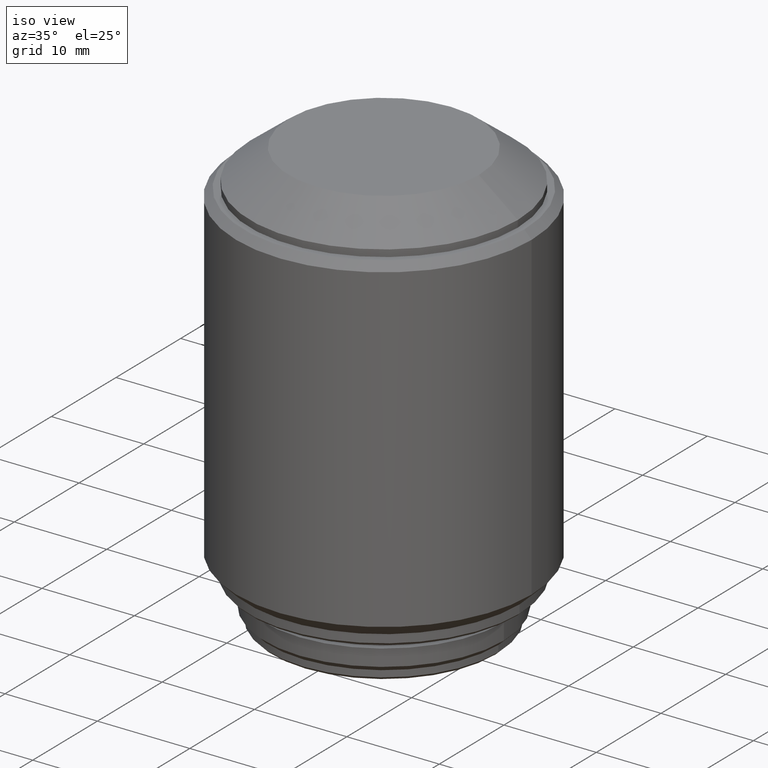
[diagram: clean part render]
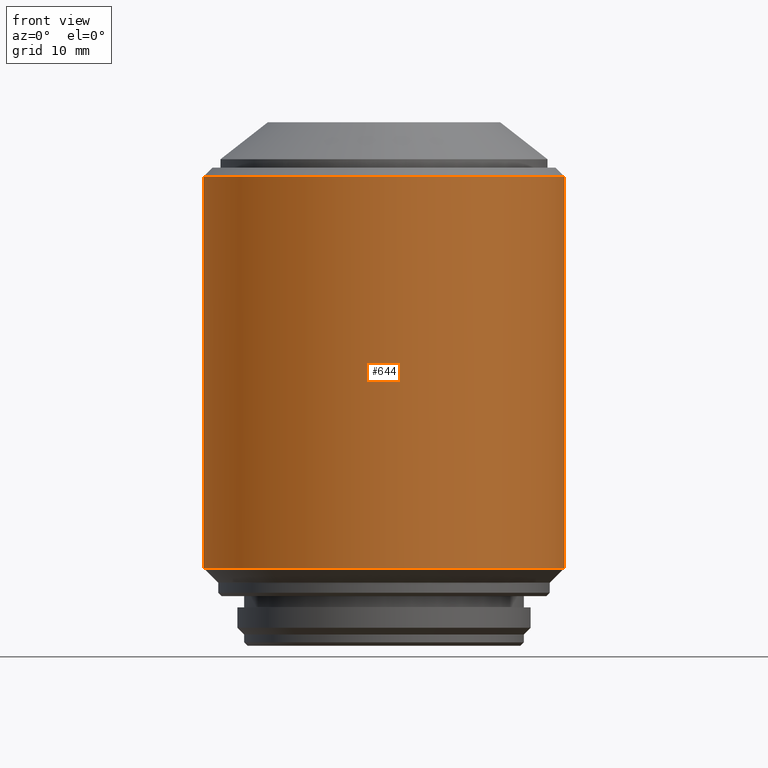
[diagram: tour spotlight — one face highlighted and labeled with its STEP entity id]
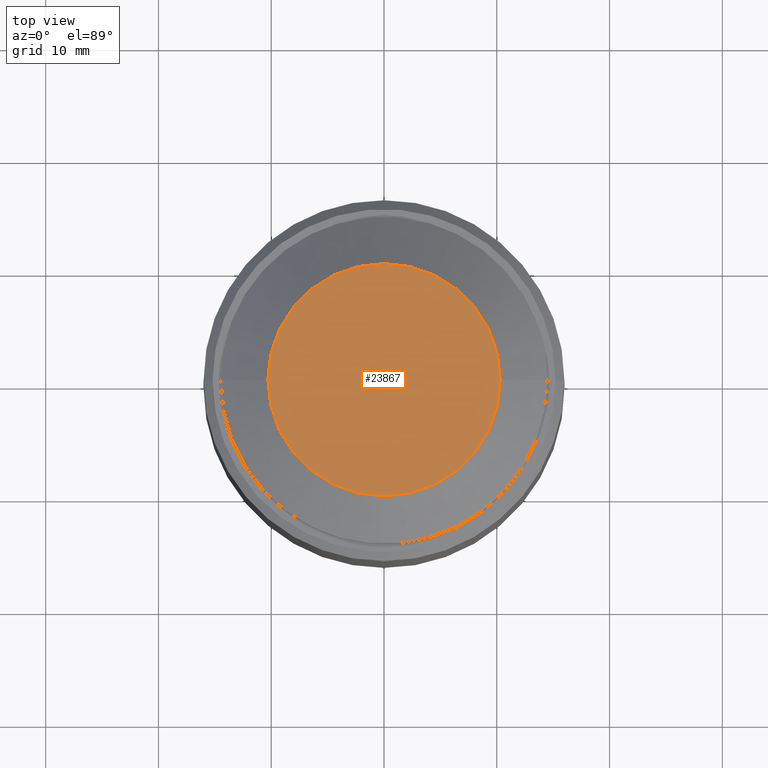
[diagram: tour spotlight — one face highlighted and labeled with its STEP entity id]
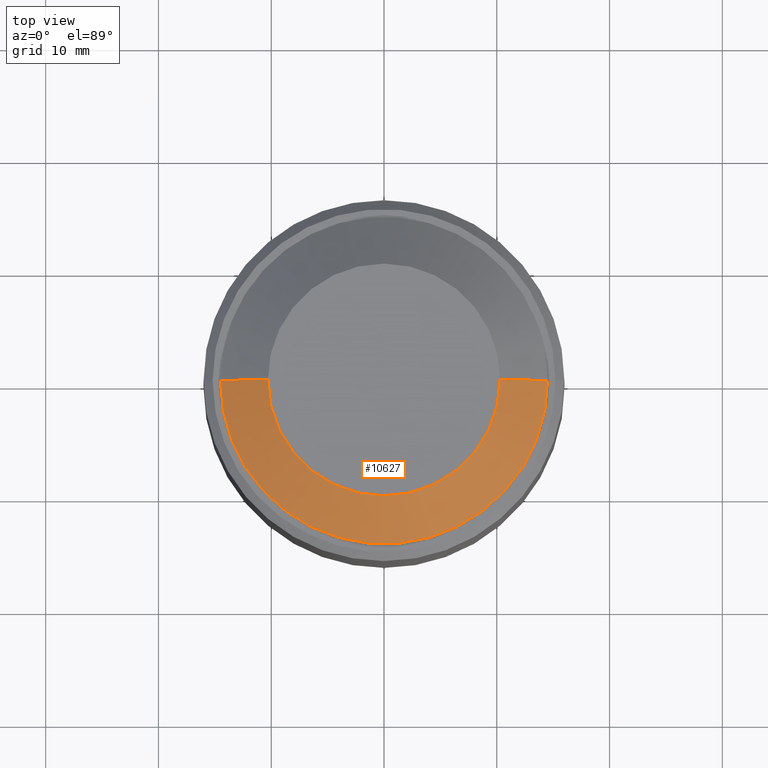
[diagram: tour spotlight — one face highlighted and labeled with its STEP entity id]
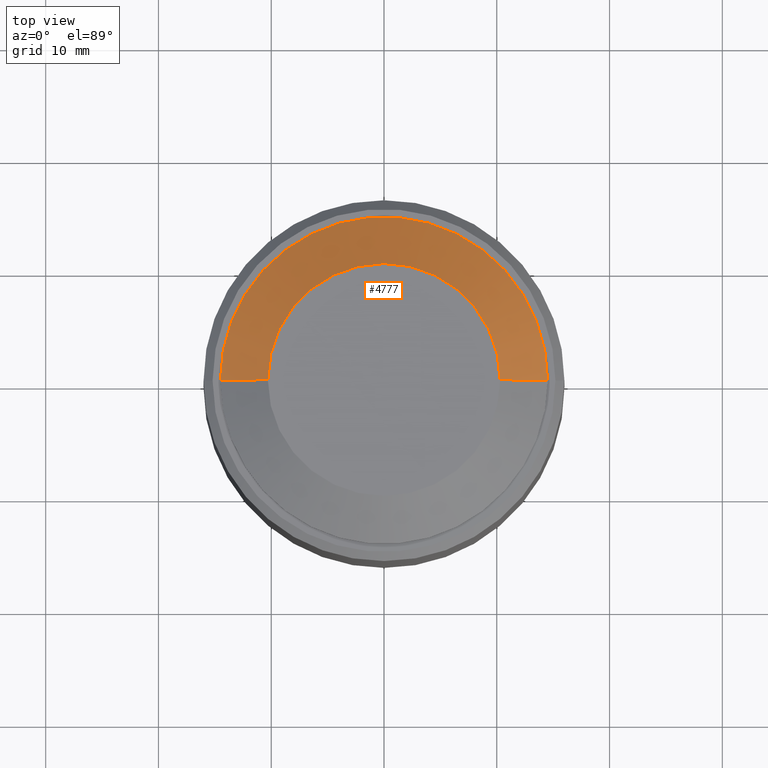
[diagram: tour spotlight — one face highlighted and labeled with its STEP entity id]
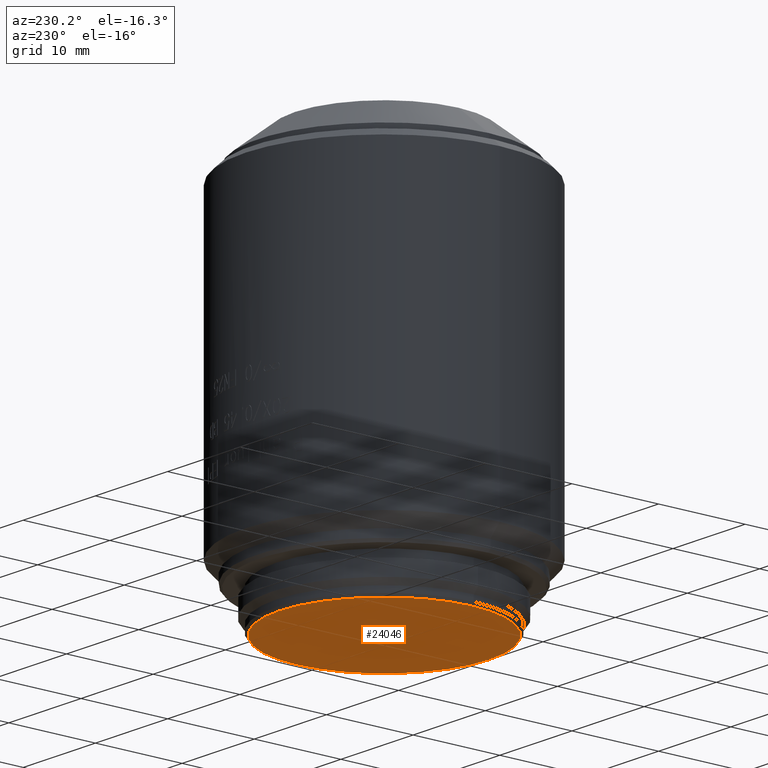
[diagram: tour spotlight — one face highlighted and labeled with its STEP entity id]
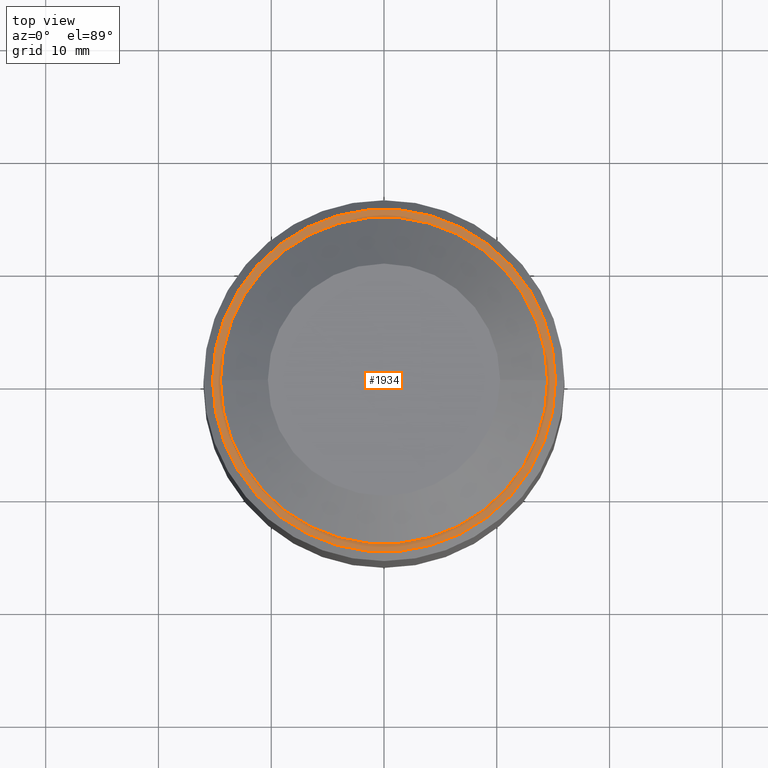
[diagram: tour spotlight — one face highlighted and labeled with its STEP entity id]
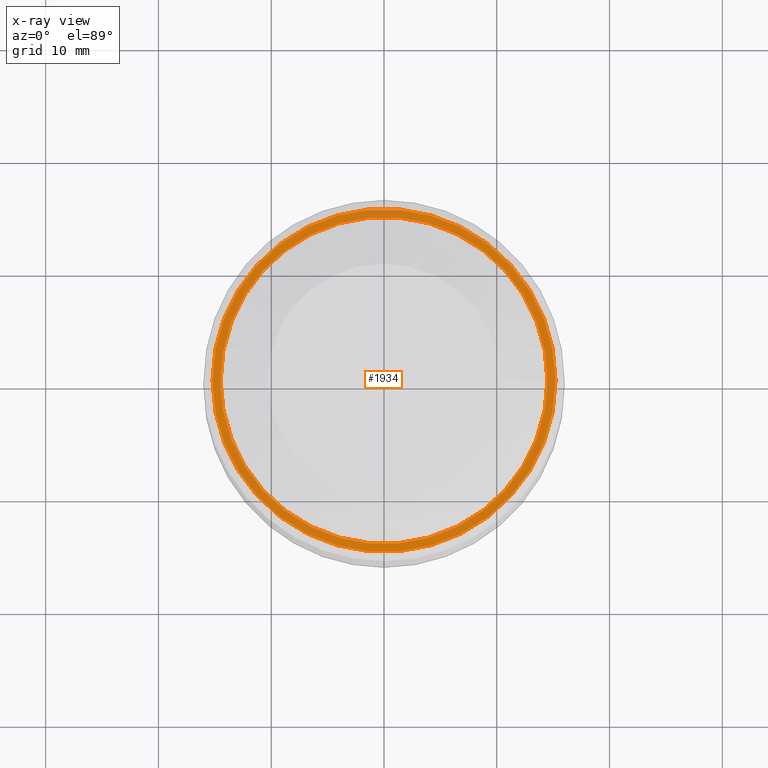
[diagram: x-ray of the same camera — body ghosted, this tour face saturated]
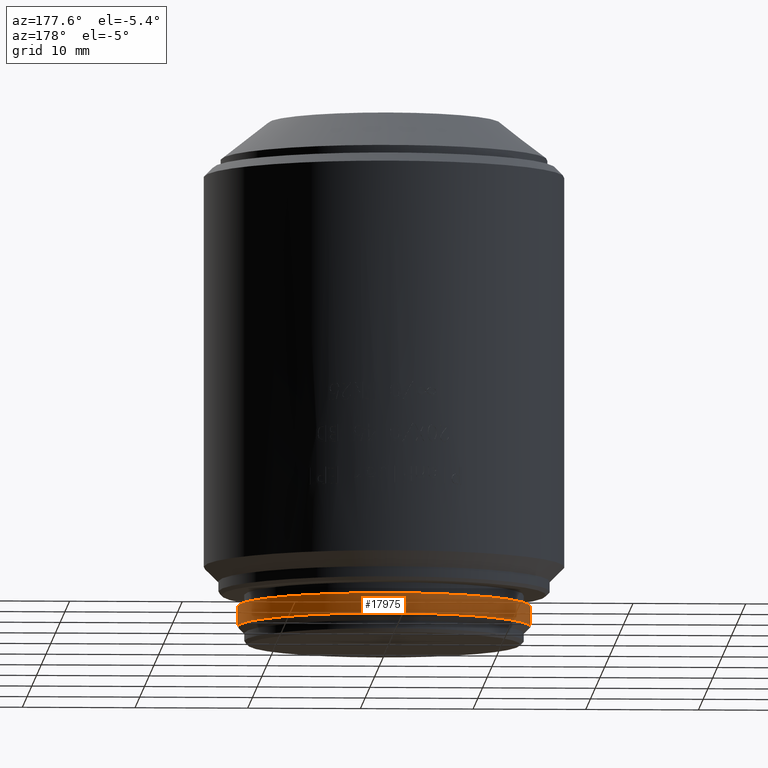
[diagram: tour spotlight — one face highlighted and labeled with its STEP entity id]
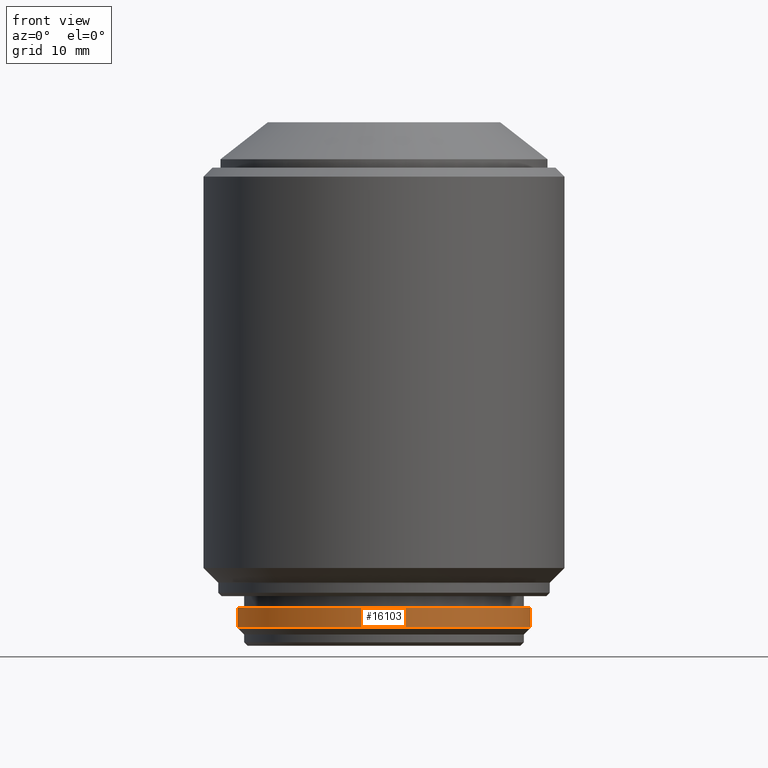
[diagram: tour spotlight — one face highlighted and labeled with its STEP entity id]
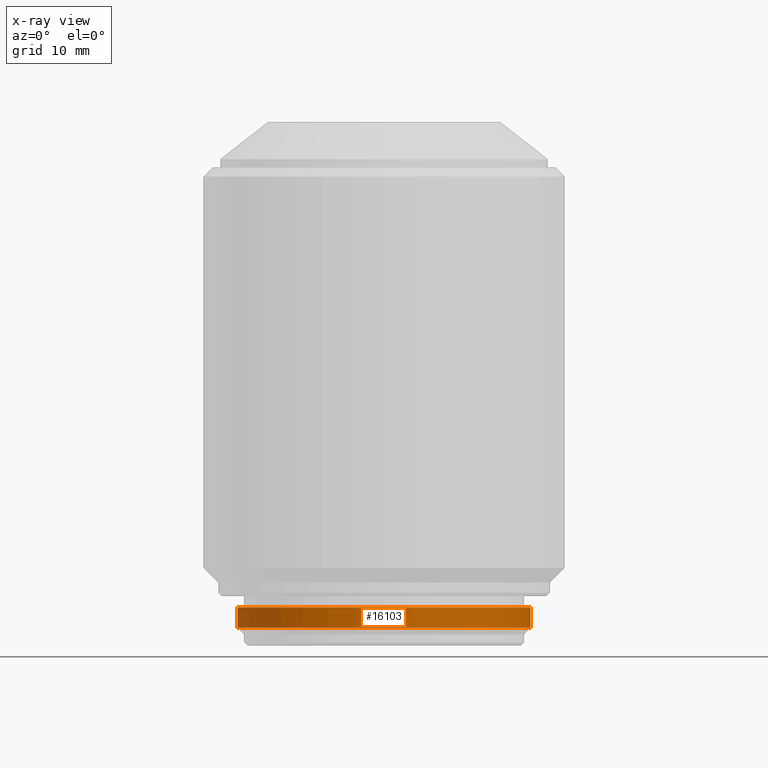
[diagram: x-ray of the same camera — body ghosted, this tour face saturated]
A machine part: a face-by-face anatomy tour. The part has 347 B-rep faces; the first image is the clean iso view, then the 8 largest visible faces are spotlighted one at a time (largest first), each with its STEP entity span.

Face 1 — front view, entity #644. In plain terms, the highlighted cylindrical surface (partial cylindrical patch) has radius 16 mm, axis along (0, 0, -1).
Definition (entity closure, byte-faithful):
#644 = ADVANCED_FACE ( 'NONE', ( #7503 ), #5560, .T. ) ;
#756 = DIRECTION ( 'NONE',  ( 0.000000000000000000, 0.000000000000000000, 1.000000000000000000 ) ) ;
#1432 = DIRECTION ( 'NONE',  ( 0.000000000000000000, 0.000000000000000000, -1.000000000000000000 ) ) ;
#2562 = CARTESIAN_POINT ( 'NONE',  ( -16.00000000000000355, 1.959434878635765526E-15, 6.899999999999999467 ) ) ;
#2698 = CARTESIAN_POINT ( 'NONE',  ( 0.000000000000000000, 0.000000000000000000, 6.899999999999999467 ) ) ;
#2952 = ORIENTED_EDGE ( 'NONE', *, *, #6996, .F. ) ;
#3122 = AXIS2_PLACEMENT_3D ( 'NONE', #2698, #756, #7221 ) ;
#3354 = CARTESIAN_POINT ( 'NONE',  ( 0.000000000000000000, 0.000000000000000000, 46.42300000000000182 ) ) ;
#4646 = EDGE_LOOP ( 'NONE', ( #2952, #12600, #4903, #21440 ) ) ;
#4903 = ORIENTED_EDGE ( 'NONE', *, *, #5698, .T. ) ;
#5560 = CYLINDRICAL_SURFACE ( 'NONE', #22860, 16.00000000000000000 ) ;
#5698 = EDGE_CURVE ( 'NONE', #23329, #9881, #20385, .T. ) ;
#6996 = EDGE_CURVE ( 'NONE', #23254, #23203, #12743, .T. ) ;
#7221 = DIRECTION ( 'NONE',  ( -1.000000000000000000, 0.000000000000000000, 0.000000000000000000 ) ) ;
#7503 = FACE_OUTER_BOUND ( 'NONE', #4646, .T. ) ;
#7744 = CARTESIAN_POINT ( 'NONE',  ( -16.00000000000000000, 0.000000000000000000, 41.60000000000000142 ) ) ;
#9881 = VERTEX_POINT ( 'NONE', #2562 ) ;
#10531 = CARTESIAN_POINT ( 'NONE',  ( -16.00000000000000000, 0.000000000000000000, 46.42300000000000182 ) ) ;
#11258 = DIRECTION ( 'NONE',  ( 0.000000000000000000, 0.000000000000000000, -1.000000000000000000 ) ) ;
#12600 = ORIENTED_EDGE ( 'NONE', *, *, #19697, .T. ) ;
#12743 = LINE ( 'NONE', #20652, #15422 ) ;
#13001 = DIRECTION ( 'NONE',  ( 0.000000000000000000, 0.000000000000000000, -1.000000000000000000 ) ) ;
#15422 = VECTOR ( 'NONE', #13001, 1000.000000000000000 ) ;
#15578 = AXIS2_PLACEMENT_3D ( 'NONE', #15696, #1432, #20221 ) ;
#15696 = CARTESIAN_POINT ( 'NONE',  ( 0.000000000000000000, 0.000000000000000000, 41.60000000000000142 ) ) ;
#15950 = CIRCLE ( 'NONE', #3122, 16.00000000000000000 ) ;
#18448 = DIRECTION ( 'NONE',  ( 0.000000000000000000, 0.000000000000000000, -1.000000000000000000 ) ) ;
#19169 = DIRECTION ( 'NONE',  ( -1.000000000000000000, 0.000000000000000000, 0.000000000000000000 ) ) ;
#19609 = VECTOR ( 'NONE', #18448, 1000.000000000000000 ) ;
#19697 = EDGE_CURVE ( 'NONE', #23254, #23329, #21773, .T. ) ;
#19790 = CARTESIAN_POINT ( 'NONE',  ( 16.00000000000000000, 1.959434878635765526E-15, 41.60000000000000142 ) ) ;
#20221 = DIRECTION ( 'NONE',  ( 1.000000000000000000, 0.000000000000000000, 0.000000000000000000 ) ) ;
#20385 = LINE ( 'NONE', #10531, #19609 ) ;
#20652 = CARTESIAN_POINT ( 'NONE',  ( 16.00000000000000000, 1.959434878635765131E-15, 46.42300000000000182 ) ) ;
#21440 = ORIENTED_EDGE ( 'NONE', *, *, #23693, .T. ) ;
#21773 = CIRCLE ( 'NONE', #15578, 16.00000000000000000 ) ;
#22860 = AXIS2_PLACEMENT_3D ( 'NONE', #3354, #11258, #19169 ) ;
#23203 = VERTEX_POINT ( 'NONE', #24967 ) ;
#23254 = VERTEX_POINT ( 'NONE', #19790 ) ;
#23329 = VERTEX_POINT ( 'NONE', #7744 ) ;
#23693 = EDGE_CURVE ( 'NONE', #9881, #23203, #15950, .T. ) ;
#24967 = CARTESIAN_POINT ( 'NONE',  ( 16.00000000000000355, 0.000000000000000000, 6.899999999999999467 ) ) ;

Face 2 — top view, entity #23867. In plain terms, the highlighted planar face has unit normal (0, 0, 1).
Definition (entity closure, byte-faithful):
#187 = CIRCLE ( 'NONE', #13835, 10.30000000000000071 ) ;
#220 = AXIS2_PLACEMENT_3D ( 'NONE', #25340, #23406, #5660 ) ;
#834 = VERTEX_POINT ( 'NONE', #10980 ) ;
#1337 = DIRECTION ( 'NONE',  ( 1.000000000000000000, 0.000000000000000000, 0.000000000000000000 ) ) ;
#1894 = EDGE_LOOP ( 'NONE', ( #21714, #19613 ) ) ;
#3396 = CARTESIAN_POINT ( 'NONE',  ( 0.000000000000000000, 0.000000000000000000, 46.42300000000000182 ) ) ;
#3811 = EDGE_CURVE ( 'NONE', #834, #24358, #187, .T. ) ;
#5660 = DIRECTION ( 'NONE',  ( 1.000000000000000000, 0.000000000000000000, 0.000000000000000000 ) ) ;
#6266 = AXIS2_PLACEMENT_3D ( 'NONE', #3396, #17267, #11300 ) ;
#7932 = CIRCLE ( 'NONE', #6266, 10.30000000000000071 ) ;
#9544 = PLANE ( 'NONE',  #220 ) ;
#10980 = CARTESIAN_POINT ( 'NONE',  ( 10.30000000000000071, 1.518562030942717967E-15, 46.42300000000000182 ) ) ;
#11300 = DIRECTION ( 'NONE',  ( 1.000000000000000000, 0.000000000000000000, 0.000000000000000000 ) ) ;
#13835 = AXIS2_PLACEMENT_3D ( 'NONE', #18853, #19097, #1337 ) ;
#16363 = EDGE_CURVE ( 'NONE', #24358, #834, #7932, .T. ) ;
#17267 = DIRECTION ( 'NONE',  ( 0.000000000000000000, 0.000000000000000000, 1.000000000000000000 ) ) ;
#17324 = FACE_OUTER_BOUND ( 'NONE', #1894, .T. ) ;
#18853 = CARTESIAN_POINT ( 'NONE',  ( 0.000000000000000000, 0.000000000000000000, 46.42300000000000182 ) ) ;
#19097 = DIRECTION ( 'NONE',  ( 0.000000000000000000, 0.000000000000000000, 1.000000000000000000 ) ) ;
#19613 = ORIENTED_EDGE ( 'NONE', *, *, #3811, .T. ) ;
#19844 = CARTESIAN_POINT ( 'NONE',  ( -10.30000000000000071, 0.000000000000000000, 46.42300000000000182 ) ) ;
#21714 = ORIENTED_EDGE ( 'NONE', *, *, #16363, .T. ) ;
#23406 = DIRECTION ( 'NONE',  ( 0.000000000000000000, 0.000000000000000000, 1.000000000000000000 ) ) ;
#23867 = ADVANCED_FACE ( 'NONE', ( #17324 ), #9544, .T. ) ;
#24358 = VERTEX_POINT ( 'NONE', #19844 ) ;
#25340 = CARTESIAN_POINT ( 'NONE',  ( 0.000000000000000000, 0.000000000000000000, 46.42300000000000182 ) ) ;

Face 3 — top view, entity #10627. In plain terms, the highlighted conical surface has half-angle 52.003 deg.
Definition (entity closure, byte-faithful):
#834 = VERTEX_POINT ( 'NONE', #10980 ) ;
#1117 = LINE ( 'NONE', #18627, #9197 ) ;
#1478 = LINE ( 'NONE', #24932, #21465 ) ;
#1572 = CARTESIAN_POINT ( 'NONE',  ( 0.000000000000000000, 0.000000000000000000, 43.14200000000000301 ) ) ;
#1694 = VERTEX_POINT ( 'NONE', #24799 ) ;
#1801 = FACE_OUTER_BOUND ( 'NONE', #16495, .T. ) ;
#3187 = EDGE_CURVE ( 'NONE', #834, #1694, #1478, .T. ) ;
#3396 = CARTESIAN_POINT ( 'NONE',  ( 0.000000000000000000, 0.000000000000000000, 46.42300000000000182 ) ) ;
#5715 = ORIENTED_EDGE ( 'NONE', *, *, #16363, .F. ) ;
#5936 = DIRECTION ( 'NONE',  ( -1.000000000000000000, 0.000000000000000000, 0.000000000000000000 ) ) ;
#6118 = EDGE_CURVE ( 'NONE', #1694, #7456, #19194, .T. ) ;
#6266 = AXIS2_PLACEMENT_3D ( 'NONE', #3396, #17267, #11300 ) ;
#7456 = VERTEX_POINT ( 'NONE', #8957 ) ;
#7637 = EDGE_CURVE ( 'NONE', #24358, #7456, #1117, .T. ) ;
#7932 = CIRCLE ( 'NONE', #6266, 10.30000000000000071 ) ;
#8197 = CONICAL_SURFACE ( 'NONE', #23919, 10.30000000000000071, 0.9076302983951283210 ) ;
#8957 = CARTESIAN_POINT ( 'NONE',  ( -14.49999999999999822, 0.000000000000000000, 43.14200000000000301 ) ) ;
#9197 = VECTOR ( 'NONE', #14607, 1000.000000000000000 ) ;
#10627 = ADVANCED_FACE ( 'NONE', ( #1801 ), #8197, .T. ) ;
#10980 = CARTESIAN_POINT ( 'NONE',  ( 10.30000000000000071, 1.518562030942717967E-15, 46.42300000000000182 ) ) ;
#11300 = DIRECTION ( 'NONE',  ( 1.000000000000000000, 0.000000000000000000, 0.000000000000000000 ) ) ;
#11677 = DIRECTION ( 'NONE',  ( 1.000000000000000000, 0.000000000000000000, 0.000000000000000000 ) ) ;
#12140 = AXIS2_PLACEMENT_3D ( 'NONE', #1572, #17388, #11677 ) ;
#13274 = DIRECTION ( 'NONE',  ( 0.7880471300411503455, 9.650793953821527505E-17, -0.6156149127773842267 ) ) ;
#13629 = ORIENTED_EDGE ( 'NONE', *, *, #6118, .F. ) ;
#14607 = DIRECTION ( 'NONE',  ( -0.7880471300411503455, 0.000000000000000000, -0.6156149127773842267 ) ) ;
#15795 = DIRECTION ( 'NONE',  ( 0.000000000000000000, 0.000000000000000000, -1.000000000000000000 ) ) ;
#16052 = CARTESIAN_POINT ( 'NONE',  ( 0.000000000000000000, 0.000000000000000000, 46.42300000000000182 ) ) ;
#16363 = EDGE_CURVE ( 'NONE', #24358, #834, #7932, .T. ) ;
#16495 = EDGE_LOOP ( 'NONE', ( #22158, #5715, #17248, #13629 ) ) ;
#17248 = ORIENTED_EDGE ( 'NONE', *, *, #7637, .T. ) ;
#17267 = DIRECTION ( 'NONE',  ( 0.000000000000000000, 0.000000000000000000, 1.000000000000000000 ) ) ;
#17388 = DIRECTION ( 'NONE',  ( 0.000000000000000000, 0.000000000000000000, -1.000000000000000000 ) ) ;
#18627 = CARTESIAN_POINT ( 'NONE',  ( -10.30000000000000071, 0.000000000000000000, 46.42300000000000182 ) ) ;
#19194 = CIRCLE ( 'NONE', #12140, 14.50000000000000000 ) ;
#19844 = CARTESIAN_POINT ( 'NONE',  ( -10.30000000000000071, 0.000000000000000000, 46.42300000000000182 ) ) ;
#21465 = VECTOR ( 'NONE', #13274, 1000.000000000000000 ) ;
#22158 = ORIENTED_EDGE ( 'NONE', *, *, #3187, .F. ) ;
#23919 = AXIS2_PLACEMENT_3D ( 'NONE', #16052, #15795, #5936 ) ;
#24358 = VERTEX_POINT ( 'NONE', #19844 ) ;
#24799 = CARTESIAN_POINT ( 'NONE',  ( 14.49999999999999822, 1.775737858763662015E-15, 43.14200000000000301 ) ) ;
#24932 = CARTESIAN_POINT ( 'NONE',  ( 10.30000000000000071, 1.261386203121773722E-15, 46.42300000000000182 ) ) ;

Face 4 — top view, entity #4777. In plain terms, the highlighted conical surface has half-angle 52.003 deg.
Definition (entity closure, byte-faithful):
#187 = CIRCLE ( 'NONE', #13835, 10.30000000000000071 ) ;
#683 = ORIENTED_EDGE ( 'NONE', *, *, #7637, .F. ) ;
#834 = VERTEX_POINT ( 'NONE', #10980 ) ;
#853 = EDGE_CURVE ( 'NONE', #7456, #1694, #12540, .T. ) ;
#1117 = LINE ( 'NONE', #18627, #9197 ) ;
#1320 = CONICAL_SURFACE ( 'NONE', #12084, 10.30000000000000071, 0.9076302983951283210 ) ;
#1337 = DIRECTION ( 'NONE',  ( 1.000000000000000000, 0.000000000000000000, 0.000000000000000000 ) ) ;
#1478 = LINE ( 'NONE', #24932, #21465 ) ;
#1694 = VERTEX_POINT ( 'NONE', #24799 ) ;
#3187 = EDGE_CURVE ( 'NONE', #834, #1694, #1478, .T. ) ;
#3199 = ORIENTED_EDGE ( 'NONE', *, *, #3811, .F. ) ;
#3811 = EDGE_CURVE ( 'NONE', #834, #24358, #187, .T. ) ;
#4777 = ADVANCED_FACE ( 'NONE', ( #11608 ), #1320, .T. ) ;
#7426 = EDGE_LOOP ( 'NONE', ( #3199, #19588, #8541, #683 ) ) ;
#7456 = VERTEX_POINT ( 'NONE', #8957 ) ;
#7637 = EDGE_CURVE ( 'NONE', #24358, #7456, #1117, .T. ) ;
#7728 = DIRECTION ( 'NONE',  ( -1.000000000000000000, 0.000000000000000000, 0.000000000000000000 ) ) ;
#8541 = ORIENTED_EDGE ( 'NONE', *, *, #853, .F. ) ;
#8957 = CARTESIAN_POINT ( 'NONE',  ( -14.49999999999999822, 0.000000000000000000, 43.14200000000000301 ) ) ;
#9197 = VECTOR ( 'NONE', #14607, 1000.000000000000000 ) ;
#10980 = CARTESIAN_POINT ( 'NONE',  ( 10.30000000000000071, 1.518562030942717967E-15, 46.42300000000000182 ) ) ;
#11482 = CARTESIAN_POINT ( 'NONE',  ( 0.000000000000000000, 0.000000000000000000, 43.14200000000000301 ) ) ;
#11608 = FACE_OUTER_BOUND ( 'NONE', #7426, .T. ) ;
#11694 = AXIS2_PLACEMENT_3D ( 'NONE', #11482, #18893, #19400 ) ;
#12084 = AXIS2_PLACEMENT_3D ( 'NONE', #23399, #19652, #7728 ) ;
#12540 = CIRCLE ( 'NONE', #11694, 14.50000000000000000 ) ;
#13274 = DIRECTION ( 'NONE',  ( 0.7880471300411503455, 9.650793953821527505E-17, -0.6156149127773842267 ) ) ;
#13835 = AXIS2_PLACEMENT_3D ( 'NONE', #18853, #19097, #1337 ) ;
#14607 = DIRECTION ( 'NONE',  ( -0.7880471300411503455, 0.000000000000000000, -0.6156149127773842267 ) ) ;
#18627 = CARTESIAN_POINT ( 'NONE',  ( -10.30000000000000071, 0.000000000000000000, 46.42300000000000182 ) ) ;
#18853 = CARTESIAN_POINT ( 'NONE',  ( 0.000000000000000000, 0.000000000000000000, 46.42300000000000182 ) ) ;
#18893 = DIRECTION ( 'NONE',  ( 0.000000000000000000, 0.000000000000000000, -1.000000000000000000 ) ) ;
#19097 = DIRECTION ( 'NONE',  ( 0.000000000000000000, 0.000000000000000000, 1.000000000000000000 ) ) ;
#19400 = DIRECTION ( 'NONE',  ( 1.000000000000000000, 0.000000000000000000, 0.000000000000000000 ) ) ;
#19588 = ORIENTED_EDGE ( 'NONE', *, *, #3187, .T. ) ;
#19652 = DIRECTION ( 'NONE',  ( 0.000000000000000000, 0.000000000000000000, -1.000000000000000000 ) ) ;
#19844 = CARTESIAN_POINT ( 'NONE',  ( -10.30000000000000071, 0.000000000000000000, 46.42300000000000182 ) ) ;
#21465 = VECTOR ( 'NONE', #13274, 1000.000000000000000 ) ;
#23399 = CARTESIAN_POINT ( 'NONE',  ( 0.000000000000000000, 0.000000000000000000, 46.42300000000000182 ) ) ;
#24358 = VERTEX_POINT ( 'NONE', #19844 ) ;
#24799 = CARTESIAN_POINT ( 'NONE',  ( 14.49999999999999822, 1.775737858763662015E-15, 43.14200000000000301 ) ) ;
#24932 = CARTESIAN_POINT ( 'NONE',  ( 10.30000000000000071, 1.261386203121773722E-15, 46.42300000000000182 ) ) ;

Face 5 — auxiliary view, entity #24046. In plain terms, the highlighted planar face has unit normal (0, 0, 1).
Definition (entity closure, byte-faithful):
#339 = DIRECTION ( 'NONE',  ( 0.000000000000000000, 0.000000000000000000, 1.000000000000000000 ) ) ;
#1242 = CARTESIAN_POINT ( 'NONE',  ( 12.09999999999999964, 0.000000000000000000, 0.000000000000000000 ) ) ;
#2843 = AXIS2_PLACEMENT_3D ( 'NONE', #13357, #13110, #3255 ) ;
#2849 = AXIS2_PLACEMENT_3D ( 'NONE', #23377, #19632, #13790 ) ;
#3255 = DIRECTION ( 'NONE',  ( 1.000000000000000000, 0.000000000000000000, 0.000000000000000000 ) ) ;
#3429 = EDGE_CURVE ( 'NONE', #19144, #9471, #25171, .T. ) ;
#4886 = ORIENTED_EDGE ( 'NONE', *, *, #3429, .T. ) ;
#6149 = CIRCLE ( 'NONE', #2843, 12.09999999999999964 ) ;
#6299 = DIRECTION ( 'NONE',  ( 1.000000000000000000, 0.000000000000000000, 0.000000000000000000 ) ) ;
#6724 = EDGE_LOOP ( 'NONE', ( #15570, #4886 ) ) ;
#7736 = PLANE ( 'NONE',  #15140 ) ;
#7984 = FACE_OUTER_BOUND ( 'NONE', #6724, .T. ) ;
#9471 = VERTEX_POINT ( 'NONE', #1242 ) ;
#10298 = EDGE_CURVE ( 'NONE', #9471, #19144, #6149, .T. ) ;
#13110 = DIRECTION ( 'NONE',  ( 0.000000000000000000, 0.000000000000000000, -1.000000000000000000 ) ) ;
#13357 = CARTESIAN_POINT ( 'NONE',  ( 0.000000000000000000, 0.000000000000000000, 0.000000000000000000 ) ) ;
#13790 = DIRECTION ( 'NONE',  ( 1.000000000000000000, 0.000000000000000000, 0.000000000000000000 ) ) ;
#15140 = AXIS2_PLACEMENT_3D ( 'NONE', #24036, #339, #6299 ) ;
#15570 = ORIENTED_EDGE ( 'NONE', *, *, #10298, .T. ) ;
#15888 = CARTESIAN_POINT ( 'NONE',  ( -12.09999999999999964, 1.500192328955508523E-15, 0.000000000000000000 ) ) ;
#19144 = VERTEX_POINT ( 'NONE', #15888 ) ;
#19632 = DIRECTION ( 'NONE',  ( 0.000000000000000000, 0.000000000000000000, -1.000000000000000000 ) ) ;
#23377 = CARTESIAN_POINT ( 'NONE',  ( 0.000000000000000000, 0.000000000000000000, 0.000000000000000000 ) ) ;
#24036 = CARTESIAN_POINT ( 'NONE',  ( 0.000000000000000000, 0.000000000000000000, 0.000000000000000000 ) ) ;
#24046 = ADVANCED_FACE ( 'NONE', ( #7984 ), #7736, .F. ) ;
#25171 = CIRCLE ( 'NONE', #2849, 12.09999999999999964 ) ;

Face 6 — top view, entity #1934. An x-ray twin of the same camera follows (body ghosted, this face saturated) — the face is partly hidden behind the body. In plain terms, the highlighted planar face has unit normal (0, 0, 1).
Definition (entity closure, byte-faithful):
#131 = ORIENTED_EDGE ( 'NONE', *, *, #1206, .F. ) ;
#168 = EDGE_CURVE ( 'NONE', #23279, #8726, #8263, .T. ) ;
#362 = AXIS2_PLACEMENT_3D ( 'NONE', #12285, #20192, #2439 ) ;
#1206 = EDGE_CURVE ( 'NONE', #7737, #15767, #19158, .T. ) ;
#1934 = ADVANCED_FACE ( 'NONE', ( #15603, #23495 ), #21419, .T. ) ;
#2439 = DIRECTION ( 'NONE',  ( 1.000000000000000000, 0.000000000000000000, 0.000000000000000000 ) ) ;
#4547 = DIRECTION ( 'NONE',  ( 1.000000000000000000, 0.000000000000000000, 0.000000000000000000 ) ) ;
#4868 = DIRECTION ( 'NONE',  ( 0.000000000000000000, 0.000000000000000000, 1.000000000000000000 ) ) ;
#5913 = AXIS2_PLACEMENT_3D ( 'NONE', #20291, #4868, #12768 ) ;
#7482 = CARTESIAN_POINT ( 'NONE',  ( -15.19999999999999929, 0.000000000000000000, 42.39999999999999858 ) ) ;
#7630 = CARTESIAN_POINT ( 'NONE',  ( 0.000000000000000000, 0.000000000000000000, 42.39999999999999858 ) ) ;
#7737 = VERTEX_POINT ( 'NONE', #10037 ) ;
#8263 = CIRCLE ( 'NONE', #12817, 15.19999999999999929 ) ;
#8726 = VERTEX_POINT ( 'NONE', #12846 ) ;
#9296 = CIRCLE ( 'NONE', #22550, 14.50000000000000000 ) ;
#9761 = DIRECTION ( 'NONE',  ( 0.000000000000000000, 0.000000000000000000, 1.000000000000000000 ) ) ;
#10037 = CARTESIAN_POINT ( 'NONE',  ( -14.50000000000000000, 1.775737858763662015E-15, 42.39999999999999858 ) ) ;
#10403 = ORIENTED_EDGE ( 'NONE', *, *, #12668, .T. ) ;
#11576 = CARTESIAN_POINT ( 'NONE',  ( 0.000000000000000000, 0.000000000000000000, 42.39999999999999858 ) ) ;
#12285 = CARTESIAN_POINT ( 'NONE',  ( 0.000000000000000000, 0.000000000000000000, 42.39999999999999858 ) ) ;
#12549 = EDGE_LOOP ( 'NONE', ( #13839, #10403 ) ) ;
#12668 = EDGE_CURVE ( 'NONE', #8726, #23279, #25592, .T. ) ;
#12709 = CARTESIAN_POINT ( 'NONE',  ( 0.000000000000000000, 0.000000000000000000, 42.39999999999999858 ) ) ;
#12768 = DIRECTION ( 'NONE',  ( 1.000000000000000000, 0.000000000000000000, 0.000000000000000000 ) ) ;
#12817 = AXIS2_PLACEMENT_3D ( 'NONE', #7630, #15542, #20319 ) ;
#12846 = CARTESIAN_POINT ( 'NONE',  ( 15.19999999999999929, 1.910449006669870914E-15, 42.39999999999999858 ) ) ;
#13839 = ORIENTED_EDGE ( 'NONE', *, *, #168, .T. ) ;
#15542 = DIRECTION ( 'NONE',  ( 0.000000000000000000, 0.000000000000000000, 1.000000000000000000 ) ) ;
#15603 = FACE_BOUND ( 'NONE', #21961, .T. ) ;
#15767 = VERTEX_POINT ( 'NONE', #21527 ) ;
#17968 = ORIENTED_EDGE ( 'NONE', *, *, #22564, .F. ) ;
#19158 = CIRCLE ( 'NONE', #5913, 14.50000000000000000 ) ;
#20192 = DIRECTION ( 'NONE',  ( 0.000000000000000000, 0.000000000000000000, 1.000000000000000000 ) ) ;
#20291 = CARTESIAN_POINT ( 'NONE',  ( 0.000000000000000000, 0.000000000000000000, 42.39999999999999858 ) ) ;
#20319 = DIRECTION ( 'NONE',  ( 1.000000000000000000, 0.000000000000000000, 0.000000000000000000 ) ) ;
#21419 = PLANE ( 'NONE',  #23791 ) ;
#21527 = CARTESIAN_POINT ( 'NONE',  ( 14.50000000000000000, 0.000000000000000000, 42.39999999999999858 ) ) ;
#21961 = EDGE_LOOP ( 'NONE', ( #17968, #131 ) ) ;
#22550 = AXIS2_PLACEMENT_3D ( 'NONE', #12709, #24614, #4547 ) ;
#22564 = EDGE_CURVE ( 'NONE', #15767, #7737, #9296, .T. ) ;
#23279 = VERTEX_POINT ( 'NONE', #7482 ) ;
#23495 = FACE_OUTER_BOUND ( 'NONE', #12549, .T. ) ;
#23791 = AXIS2_PLACEMENT_3D ( 'NONE', #11576, #9761, #24522 ) ;
#24522 = DIRECTION ( 'NONE',  ( 1.000000000000000000, 0.000000000000000000, 0.000000000000000000 ) ) ;
#24614 = DIRECTION ( 'NONE',  ( 0.000000000000000000, 0.000000000000000000, 1.000000000000000000 ) ) ;
#25592 = CIRCLE ( 'NONE', #362, 15.19999999999999929 ) ;

Face 7 — auxiliary view, entity #17975. In plain terms, the highlighted cylindrical surface (partial cylindrical patch) has radius 13 mm, axis along (0, 0, -1).
Definition (entity closure, byte-faithful):
#640 = CARTESIAN_POINT ( 'NONE',  ( -13.00000000000000000, 0.000000000000000000, 3.399999999999999911 ) ) ;
#2380 = ORIENTED_EDGE ( 'NONE', *, *, #3356, .T. ) ;
#2755 = EDGE_LOOP ( 'NONE', ( #23590, #4057, #2380, #15632 ) ) ;
#2802 = DIRECTION ( 'NONE',  ( 0.000000000000000000, 0.000000000000000000, -1.000000000000000000 ) ) ;
#3356 = EDGE_CURVE ( 'NONE', #7123, #12772, #14861, .T. ) ;
#3691 = DIRECTION ( 'NONE',  ( -1.000000000000000000, 0.000000000000000000, 0.000000000000000000 ) ) ;
#3852 = DIRECTION ( 'NONE',  ( 0.000000000000000000, 0.000000000000000000, -1.000000000000000000 ) ) ;
#4057 = ORIENTED_EDGE ( 'NONE', *, *, #21897, .T. ) ;
#4193 = CARTESIAN_POINT ( 'NONE',  ( 0.000000000000000000, 0.000000000000000000, 1.600000000000000089 ) ) ;
#5643 = DIRECTION ( 'NONE',  ( -1.000000000000000000, 0.000000000000000000, 0.000000000000000000 ) ) ;
#5794 = CARTESIAN_POINT ( 'NONE',  ( -13.00000000000000000, 0.000000000000000000, 4.400000000000000355 ) ) ;
#7123 = VERTEX_POINT ( 'NONE', #10387 ) ;
#8276 = LINE ( 'NONE', #14107, #13442 ) ;
#9183 = AXIS2_PLACEMENT_3D ( 'NONE', #15626, #13677, #5643 ) ;
#10387 = CARTESIAN_POINT ( 'NONE',  ( 13.00000000000000000, 0.000000000000000000, 1.600000000000000089 ) ) ;
#11417 = CARTESIAN_POINT ( 'NONE',  ( -13.00000000000000000, 1.592040838891559095E-15, 1.600000000000000089 ) ) ;
#11724 = CYLINDRICAL_SURFACE ( 'NONE', #9183, 13.00000000000000000 ) ;
#12772 = VERTEX_POINT ( 'NONE', #11417 ) ;
#13442 = VECTOR ( 'NONE', #2802, 1000.000000000000000 ) ;
#13535 = DIRECTION ( 'NONE',  ( 0.000000000000000000, 0.000000000000000000, 1.000000000000000000 ) ) ;
#13540 = DIRECTION ( 'NONE',  ( 0.000000000000000000, 0.000000000000000000, 1.000000000000000000 ) ) ;
#13677 = DIRECTION ( 'NONE',  ( 0.000000000000000000, 0.000000000000000000, -1.000000000000000000 ) ) ;
#13891 = VECTOR ( 'NONE', #3852, 1000.000000000000000 ) ;
#14107 = CARTESIAN_POINT ( 'NONE',  ( 13.00000000000000000, 1.592040838891559095E-15, 4.400000000000000355 ) ) ;
#14229 = EDGE_CURVE ( 'NONE', #22261, #14739, #19254, .T. ) ;
#14739 = VERTEX_POINT ( 'NONE', #640 ) ;
#14861 = CIRCLE ( 'NONE', #18164, 13.00000000000000000 ) ;
#15626 = CARTESIAN_POINT ( 'NONE',  ( 0.000000000000000000, 0.000000000000000000, 4.400000000000000355 ) ) ;
#15632 = ORIENTED_EDGE ( 'NONE', *, *, #24994, .F. ) ;
#17051 = CARTESIAN_POINT ( 'NONE',  ( 0.000000000000000000, 0.000000000000000000, 3.399999999999999911 ) ) ;
#17975 = ADVANCED_FACE ( 'NONE', ( #21826 ), #11724, .T. ) ;
#18164 = AXIS2_PLACEMENT_3D ( 'NONE', #4193, #13535, #20007 ) ;
#18823 = AXIS2_PLACEMENT_3D ( 'NONE', #17051, #13540, #3691 ) ;
#19254 = CIRCLE ( 'NONE', #18823, 13.00000000000000000 ) ;
#19546 = LINE ( 'NONE', #5794, #13891 ) ;
#19630 = CARTESIAN_POINT ( 'NONE',  ( 13.00000000000000000, 1.592040838891559095E-15, 3.399999999999999911 ) ) ;
#20007 = DIRECTION ( 'NONE',  ( -1.000000000000000000, 0.000000000000000000, 0.000000000000000000 ) ) ;
#21826 = FACE_OUTER_BOUND ( 'NONE', #2755, .T. ) ;
#21897 = EDGE_CURVE ( 'NONE', #22261, #7123, #8276, .T. ) ;
#22261 = VERTEX_POINT ( 'NONE', #19630 ) ;
#23590 = ORIENTED_EDGE ( 'NONE', *, *, #14229, .F. ) ;
#24994 = EDGE_CURVE ( 'NONE', #14739, #12772, #19546, .T. ) ;

Face 8 — front view, entity #16103. An x-ray twin of the same camera follows (body ghosted, this face saturated) — the face is partly hidden behind the body. In plain terms, the highlighted cylindrical surface (partial cylindrical patch) has radius 13 mm, axis along (0, 0, -1).
Definition (entity closure, byte-faithful):
#640 = CARTESIAN_POINT ( 'NONE',  ( -13.00000000000000000, 0.000000000000000000, 3.399999999999999911 ) ) ;
#953 = DIRECTION ( 'NONE',  ( 0.000000000000000000, 0.000000000000000000, -1.000000000000000000 ) ) ;
#1220 = EDGE_LOOP ( 'NONE', ( #21898, #24554, #3132, #11859 ) ) ;
#2802 = DIRECTION ( 'NONE',  ( 0.000000000000000000, 0.000000000000000000, -1.000000000000000000 ) ) ;
#3052 = DIRECTION ( 'NONE',  ( -1.000000000000000000, 0.000000000000000000, 0.000000000000000000 ) ) ;
#3132 = ORIENTED_EDGE ( 'NONE', *, *, #24994, .T. ) ;
#3852 = DIRECTION ( 'NONE',  ( 0.000000000000000000, 0.000000000000000000, -1.000000000000000000 ) ) ;
#4627 = AXIS2_PLACEMENT_3D ( 'NONE', #4845, #953, #8984 ) ;
#4845 = CARTESIAN_POINT ( 'NONE',  ( 0.000000000000000000, 0.000000000000000000, 4.400000000000000355 ) ) ;
#5794 = CARTESIAN_POINT ( 'NONE',  ( -13.00000000000000000, 0.000000000000000000, 4.400000000000000355 ) ) ;
#7123 = VERTEX_POINT ( 'NONE', #10387 ) ;
#8276 = LINE ( 'NONE', #14107, #13442 ) ;
#8984 = DIRECTION ( 'NONE',  ( -1.000000000000000000, 0.000000000000000000, 0.000000000000000000 ) ) ;
#10130 = CIRCLE ( 'NONE', #20488, 13.00000000000000000 ) ;
#10387 = CARTESIAN_POINT ( 'NONE',  ( 13.00000000000000000, 0.000000000000000000, 1.600000000000000089 ) ) ;
#11173 = FACE_OUTER_BOUND ( 'NONE', #1220, .T. ) ;
#11417 = CARTESIAN_POINT ( 'NONE',  ( -13.00000000000000000, 1.592040838891559095E-15, 1.600000000000000089 ) ) ;
#11859 = ORIENTED_EDGE ( 'NONE', *, *, #22147, .T. ) ;
#12772 = VERTEX_POINT ( 'NONE', #11417 ) ;
#12897 = CARTESIAN_POINT ( 'NONE',  ( 0.000000000000000000, 0.000000000000000000, 1.600000000000000089 ) ) ;
#13442 = VECTOR ( 'NONE', #2802, 1000.000000000000000 ) ;
#13891 = VECTOR ( 'NONE', #3852, 1000.000000000000000 ) ;
#14107 = CARTESIAN_POINT ( 'NONE',  ( 13.00000000000000000, 1.592040838891559095E-15, 4.400000000000000355 ) ) ;
#14739 = VERTEX_POINT ( 'NONE', #640 ) ;
#15713 = DIRECTION ( 'NONE',  ( 0.000000000000000000, 0.000000000000000000, 1.000000000000000000 ) ) ;
#16103 = ADVANCED_FACE ( 'NONE', ( #11173 ), #21027, .T. ) ;
#16404 = EDGE_CURVE ( 'NONE', #14739, #22261, #19104, .T. ) ;
#19104 = CIRCLE ( 'NONE', #19938, 13.00000000000000000 ) ;
#19213 = CARTESIAN_POINT ( 'NONE',  ( 0.000000000000000000, 0.000000000000000000, 3.399999999999999911 ) ) ;
#19546 = LINE ( 'NONE', #5794, #13891 ) ;
#19630 = CARTESIAN_POINT ( 'NONE',  ( 13.00000000000000000, 1.592040838891559095E-15, 3.399999999999999911 ) ) ;
#19938 = AXIS2_PLACEMENT_3D ( 'NONE', #19213, #15713, #25540 ) ;
#20488 = AXIS2_PLACEMENT_3D ( 'NONE', #12897, #20810, #3052 ) ;
#20810 = DIRECTION ( 'NONE',  ( 0.000000000000000000, 0.000000000000000000, 1.000000000000000000 ) ) ;
#21027 = CYLINDRICAL_SURFACE ( 'NONE', #4627, 13.00000000000000000 ) ;
#21897 = EDGE_CURVE ( 'NONE', #22261, #7123, #8276, .T. ) ;
#21898 = ORIENTED_EDGE ( 'NONE', *, *, #21897, .F. ) ;
#22147 = EDGE_CURVE ( 'NONE', #12772, #7123, #10130, .T. ) ;
#22261 = VERTEX_POINT ( 'NONE', #19630 ) ;
#24554 = ORIENTED_EDGE ( 'NONE', *, *, #16404, .F. ) ;
#24994 = EDGE_CURVE ( 'NONE', #14739, #12772, #19546, .T. ) ;
#25540 = DIRECTION ( 'NONE',  ( -1.000000000000000000, 0.000000000000000000, 0.000000000000000000 ) ) ;